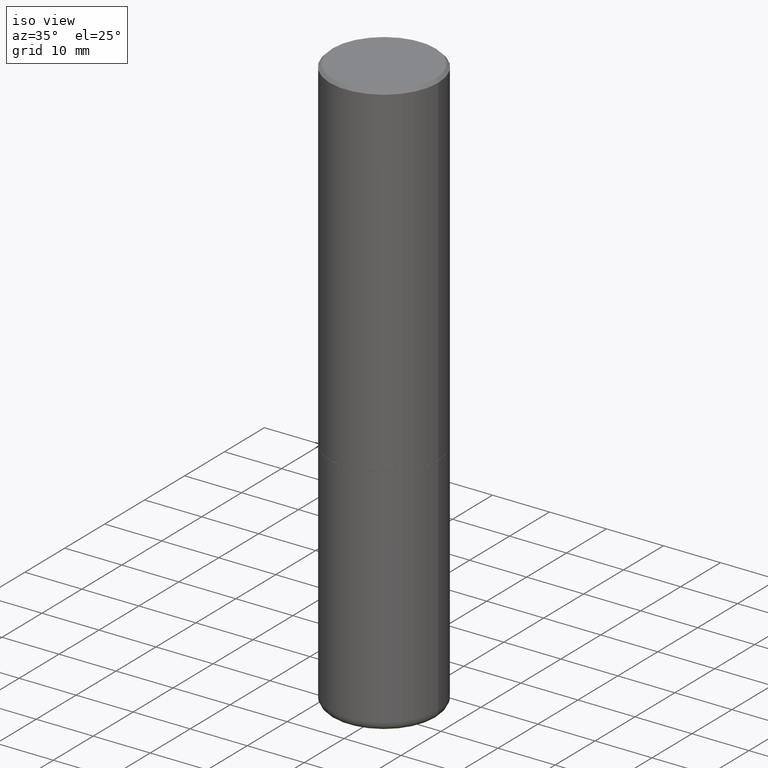
[diagram: clean part render]
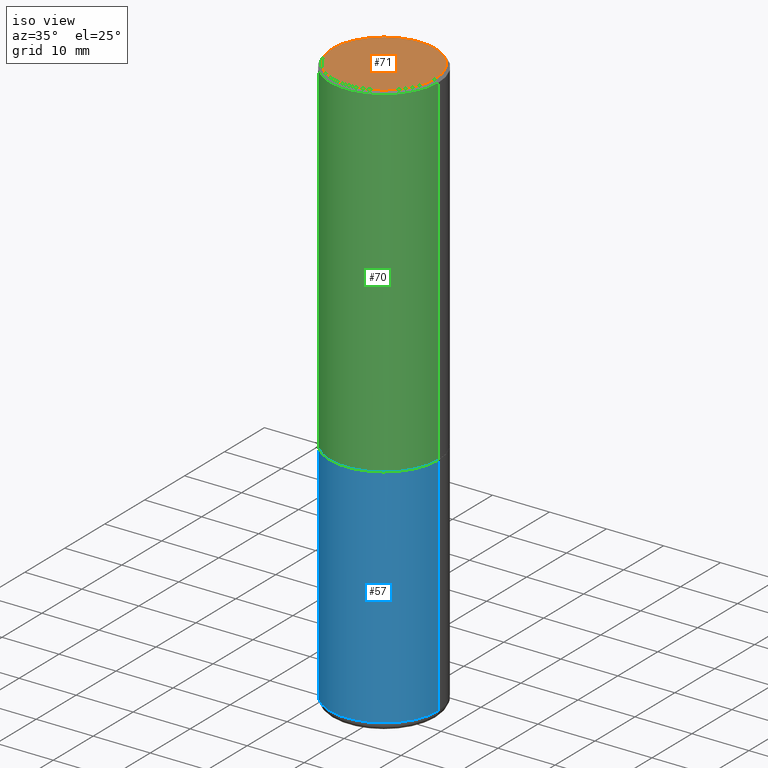
[diagram: same view with three faces highlighted in distinct colors, each labeled with its STEP entity id]
A machine part, iso view with three faces highlighted in distinct colors.
Their STEP definitions:

[orange] entity #71 — the highlighted planar face has unit normal (0, -0, -1).
#22 = VERTEX_POINT ( 'NONE', #54 ) ;
#25 = AXIS2_PLACEMENT_3D ( 'NONE', #220, #360, #352 ) ;
#53 = CIRCLE ( 'NONE', #310, 0.3549999999999997602 ) ;
#54 = CARTESIAN_POINT ( 'NONE',  ( -0.3549999999999997602, 2.513866563967053491E-15, 4.268512490082953109E-18 ) ) ;
#71 = ADVANCED_FACE ( 'NONE', ( #199 ), #330, .F. ) ;
#74 = VERTEX_POINT ( 'NONE', #269 ) ;
#93 = CARTESIAN_POINT ( 'NONE',  ( 2.478951750578623026E-15, 0.3549999999999997602, -1.237341619044265638E-15 ) ) ;
#129 = ORIENTED_EDGE ( 'NONE', *, *, #172, .T. ) ;
#168 = ORIENTED_EDGE ( 'NONE', *, *, #301, .T. ) ;
#172 = EDGE_CURVE ( 'NONE', #74, #22, #53, .T. ) ;
#189 = DIRECTION ( 'NONE',  ( 2.438088387897960049E-29, -3.491481338843145188E-15, -1.000000000000000000 ) ) ;
#199 = FACE_OUTER_BOUND ( 'NONE', #420, .T. ) ;
#208 = CARTESIAN_POINT ( 'NONE',  ( -1.043851414335219820E-46, 1.490343170380447200E-32, 4.268512490100411279E-18 ) ) ;
#216 = CIRCLE ( 'NONE', #25, 0.3549999999999997602 ) ;
#220 = CARTESIAN_POINT ( 'NONE',  ( -1.043851414335219820E-46, 1.490343170380447200E-32, 4.268512490100411279E-18 ) ) ;
#252 = DIRECTION ( 'NONE',  ( -2.445468806185136597E-29, 3.491481338843145583E-15, 1.000000000000000000 ) ) ;
#269 = CARTESIAN_POINT ( 'NONE',  ( 0.3549999999999997602, -2.538996582575039076E-15, 4.268512490117958041E-18 ) ) ;
#301 = EDGE_CURVE ( 'NONE', #22, #74, #216, .T. ) ;
#303 = AXIS2_PLACEMENT_3D ( 'NONE', #93, #189, #391 ) ;
#310 = AXIS2_PLACEMENT_3D ( 'NONE', #208, #252, #344 ) ;
#330 = PLANE ( 'NONE',  #303 ) ;
#344 = DIRECTION ( 'NONE',  ( 1.000000000000000000, -6.982962677686266711E-15, 4.876231632511991546E-29 ) ) ;
#352 = DIRECTION ( 'NONE',  ( 1.000000000000000000, -6.982962677686266711E-15, 4.876231632511991546E-29 ) ) ;
#360 = DIRECTION ( 'NONE',  ( -2.445468806185136597E-29, 3.491481338843145583E-15, 1.000000000000000000 ) ) ;
#391 = DIRECTION ( 'NONE',  ( -1.000000000000000000, 6.982962677686265922E-15, -4.876176775795935793E-29 ) ) ;
#420 = EDGE_LOOP ( 'NONE', ( #168, #129 ) ) ;

[blue] entity #57 — the highlighted cylindrical surface (partial cylindrical patch) has radius 9.525 mm, axis along (-0, 0, 1).
#34 = CARTESIAN_POINT ( 'NONE',  ( 0.3750000000000002220, -2.618611004132351594E-15, 1.828566290923477043E-29 ) ) ;
#57 = ADVANCED_FACE ( 'NONE', ( #223 ), #161, .T. ) ;
#79 = CARTESIAN_POINT ( 'NONE',  ( -0.3750000000000000555, -8.359817068296855580E-15, -2.375000000000000000 ) ) ;
#84 = CARTESIAN_POINT ( 'NONE',  ( 9.635147096369438236E-29, -1.375643647504199401E-14, -3.939999999999999947 ) ) ;
#98 = VERTEX_POINT ( 'NONE', #388 ) ;
#104 = CIRCLE ( 'NONE', #387, 0.3750000000000000555 ) ;
#110 = CARTESIAN_POINT ( 'NONE',  ( 0.3750000000000003886, -1.637504747917434719E-14, -3.939999999999999947 ) ) ;
#113 = CARTESIAN_POINT ( 'NONE',  ( -0.3750000000000002220, 2.664535259100377275E-15, -1.844600658845590719E-29 ) ) ;
#120 = DIRECTION ( 'NONE',  ( 1.000000000000000000, -6.982962677686266711E-15, 0.000000000000000000 ) ) ;
#121 = VERTEX_POINT ( 'NONE', #79 ) ;
#122 = DIRECTION ( 'NONE',  ( 1.000000000000000000, -6.982962677686265922E-15, 0.000000000000000000 ) ) ;
#137 = DIRECTION ( 'NONE',  ( -2.445468806185136597E-29, 3.491481338843145583E-15, 1.000000000000000000 ) ) ;
#144 = LINE ( 'NONE', #113, #431 ) ;
#161 = CYLINDRICAL_SURFACE ( 'NONE', #343, 0.3750000000000002220 ) ;
#167 = VERTEX_POINT ( 'NONE', #210 ) ;
#175 = DIRECTION ( 'NONE',  ( -2.445468806185136877E-29, 3.491481338843145188E-15, 1.000000000000000000 ) ) ;
#180 = ORIENTED_EDGE ( 'NONE', *, *, #374, .T. ) ;
#201 = CIRCLE ( 'NONE', #440, 0.3750000000000003886 ) ;
#207 = VECTOR ( 'NONE', #175, 39.37007874015748143 ) ;
#210 = CARTESIAN_POINT ( 'NONE',  ( -0.3750000000000003886, -1.109190121594161516E-14, -3.939999999999999947 ) ) ;
#211 = LINE ( 'NONE', #34, #207 ) ;
#221 = EDGE_LOOP ( 'NONE', ( #403, #426, #180, #304 ) ) ;
#223 = FACE_OUTER_BOUND ( 'NONE', #221, .T. ) ;
#265 = EDGE_CURVE ( 'NONE', #167, #121, #144, .T. ) ;
#273 = DIRECTION ( 'NONE',  ( -2.445468806185136597E-29, 3.491481338843145583E-15, 1.000000000000000000 ) ) ;
#299 = CARTESIAN_POINT ( 'NONE',  ( 0.000000000000000000, 0.000000000000000000, 0.000000000000000000 ) ) ;
#304 = ORIENTED_EDGE ( 'NONE', *, *, #315, .F. ) ;
#315 = EDGE_CURVE ( 'NONE', #121, #98, #104, .T. ) ;
#327 = VERTEX_POINT ( 'NONE', #110 ) ;
#343 = AXIS2_PLACEMENT_3D ( 'NONE', #299, #359, #430 ) ;
#359 = DIRECTION ( 'NONE',  ( -2.445468806185136597E-29, 3.491481338843145583E-15, 1.000000000000000000 ) ) ;
#361 = CARTESIAN_POINT ( 'NONE',  ( 5.807988414689699417E-29, -8.292268179752470118E-15, -2.375000000000000000 ) ) ;
#374 = EDGE_CURVE ( 'NONE', #327, #98, #211, .T. ) ;
#387 = AXIS2_PLACEMENT_3D ( 'NONE', #361, #137, #120 ) ;
#388 = CARTESIAN_POINT ( 'NONE',  ( 0.3750000000000000555, -1.091087918388482013E-14, -2.375000000000000000 ) ) ;
#403 = ORIENTED_EDGE ( 'NONE', *, *, #265, .F. ) ;
#405 = EDGE_CURVE ( 'NONE', #167, #327, #201, .T. ) ;
#418 = DIRECTION ( 'NONE',  ( -2.445468806185136877E-29, 3.491481338843145188E-15, 1.000000000000000000 ) ) ;
#426 = ORIENTED_EDGE ( 'NONE', *, *, #405, .T. ) ;
#430 = DIRECTION ( 'NONE',  ( 1.000000000000000000, -6.982962677686266711E-15, 4.876176775795935793E-29 ) ) ;
#431 = VECTOR ( 'NONE', #418, 39.37007874015748143 ) ;
#440 = AXIS2_PLACEMENT_3D ( 'NONE', #84, #273, #122 ) ;

[green] entity #70 — the highlighted cylindrical surface (partial cylindrical patch) has radius 9.525 mm, axis along (-0, 0, 1).
#5 = CARTESIAN_POINT ( 'NONE',  ( -0.3750000000000000555, -1.514767903494867141E-15, -2.373999999999999666 ) ) ;
#13 = CARTESIAN_POINT ( 'NONE',  ( -0.3749999999999998890, 2.664535259100374908E-15, -1.844600658845589038E-29 ) ) ;
#14 = CARTESIAN_POINT ( 'NONE',  ( 0.3750000000000000555, -1.090738770254597870E-14, -2.373999999999999666 ) ) ;
#15 = VERTEX_POINT ( 'NONE', #14 ) ;
#28 = VERTEX_POINT ( 'NONE', #115 ) ;
#60 = FACE_OUTER_BOUND ( 'NONE', #235, .T. ) ;
#68 = LINE ( 'NONE', #247, #192 ) ;
#70 = ADVANCED_FACE ( 'NONE', ( #60 ), #147, .T. ) ;
#81 = DIRECTION ( 'NONE',  ( -2.445468806185136877E-29, 3.491481338843145188E-15, 1.000000000000000000 ) ) ;
#89 = DIRECTION ( 'NONE',  ( -2.445468806185136597E-29, 3.491481338843145583E-15, 1.000000000000000000 ) ) ;
#115 = CARTESIAN_POINT ( 'NONE',  ( -0.3749999999999997780, 2.548781377355484746E-15, -0.02000000000000008021 ) ) ;
#133 = EDGE_CURVE ( 'NONE', #28, #162, #139, .T. ) ;
#139 = CIRCLE ( 'NONE', #341, 0.3749999999999997780 ) ;
#147 = CYLINDRICAL_SURFACE ( 'NONE', #246, 0.3749999999999998890 ) ;
#162 = VERTEX_POINT ( 'NONE', #411 ) ;
#183 = LINE ( 'NONE', #13, #409 ) ;
#192 = VECTOR ( 'NONE', #412, 39.37007874015748143 ) ;
#203 = EDGE_CURVE ( 'NONE', #402, #15, #320, .T. ) ;
#205 = DIRECTION ( 'NONE',  ( -2.445468806185136597E-29, 3.491481338843145583E-15, 1.000000000000000000 ) ) ;
#212 = EDGE_CURVE ( 'NONE', #15, #162, #68, .T. ) ;
#231 = ORIENTED_EDGE ( 'NONE', *, *, #212, .T. ) ;
#235 = EDGE_LOOP ( 'NONE', ( #272, #236, #231, #300 ) ) ;
#236 = ORIENTED_EDGE ( 'NONE', *, *, #203, .T. ) ;
#246 = AXIS2_PLACEMENT_3D ( 'NONE', #261, #266, #256 ) ;
#247 = CARTESIAN_POINT ( 'NONE',  ( 0.3749999999999998890, -2.618611004132349228E-15, 1.828566290923475362E-29 ) ) ;
#256 = DIRECTION ( 'NONE',  ( 1.000000000000000000, -6.982962677686266711E-15, 4.876176775795935793E-29 ) ) ;
#261 = CARTESIAN_POINT ( 'NONE',  ( 0.000000000000000000, 0.000000000000000000, 0.000000000000000000 ) ) ;
#266 = DIRECTION ( 'NONE',  ( -2.445468806185136597E-29, 3.491481338843145583E-15, 1.000000000000000000 ) ) ;
#272 = ORIENTED_EDGE ( 'NONE', *, *, #283, .F. ) ;
#283 = EDGE_CURVE ( 'NONE', #402, #28, #183, .T. ) ;
#300 = ORIENTED_EDGE ( 'NONE', *, *, #133, .F. ) ;
#320 = CIRCLE ( 'NONE', #365, 0.3750000000000000555 ) ;
#341 = AXIS2_PLACEMENT_3D ( 'NONE', #395, #89, #378 ) ;
#346 = DIRECTION ( 'NONE',  ( 1.000000000000000000, -6.982962677686266711E-15, 0.000000000000000000 ) ) ;
#365 = AXIS2_PLACEMENT_3D ( 'NONE', #377, #205, #346 ) ;
#377 = CARTESIAN_POINT ( 'NONE',  ( 5.805542945883513814E-29, -8.288776698413627111E-15, -2.373999999999999666 ) ) ;
#378 = DIRECTION ( 'NONE',  ( 1.000000000000000000, -6.982962677686265922E-15, 0.000000000000000000 ) ) ;
#395 = CARTESIAN_POINT ( 'NONE',  ( 4.890937612370293302E-31, -6.982962677686318726E-17, -0.02000000000000008021 ) ) ;
#402 = VERTEX_POINT ( 'NONE', #5 ) ;
#409 = VECTOR ( 'NONE', #81, 39.37007874015748143 ) ;
#411 = CARTESIAN_POINT ( 'NONE',  ( 0.3749999999999997780, -2.642516375941186056E-15, -0.02000000000000008021 ) ) ;
#412 = DIRECTION ( 'NONE',  ( -2.445468806185136877E-29, 3.491481338843145188E-15, 1.000000000000000000 ) ) ;